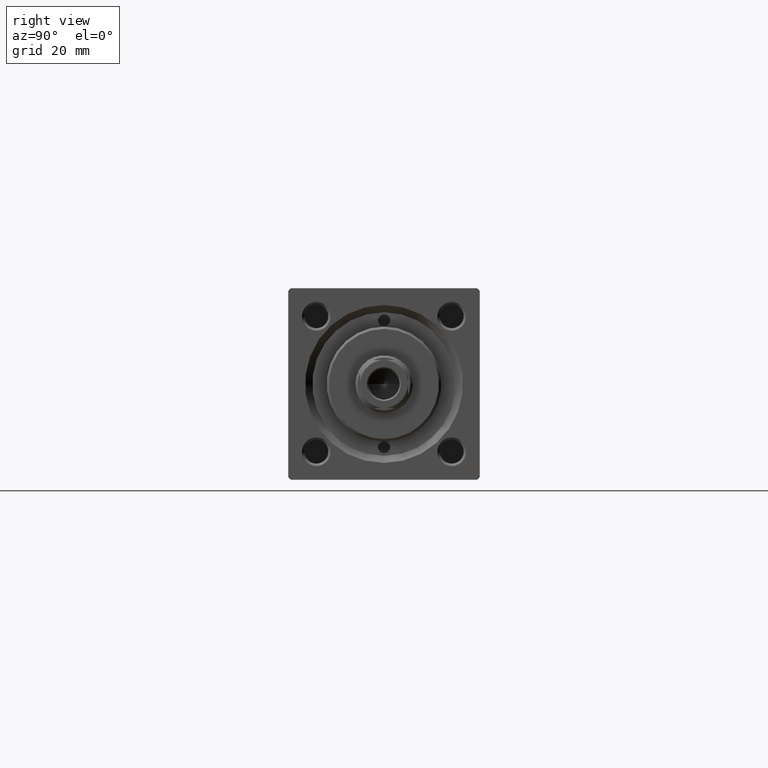
[diagram: clean part render]
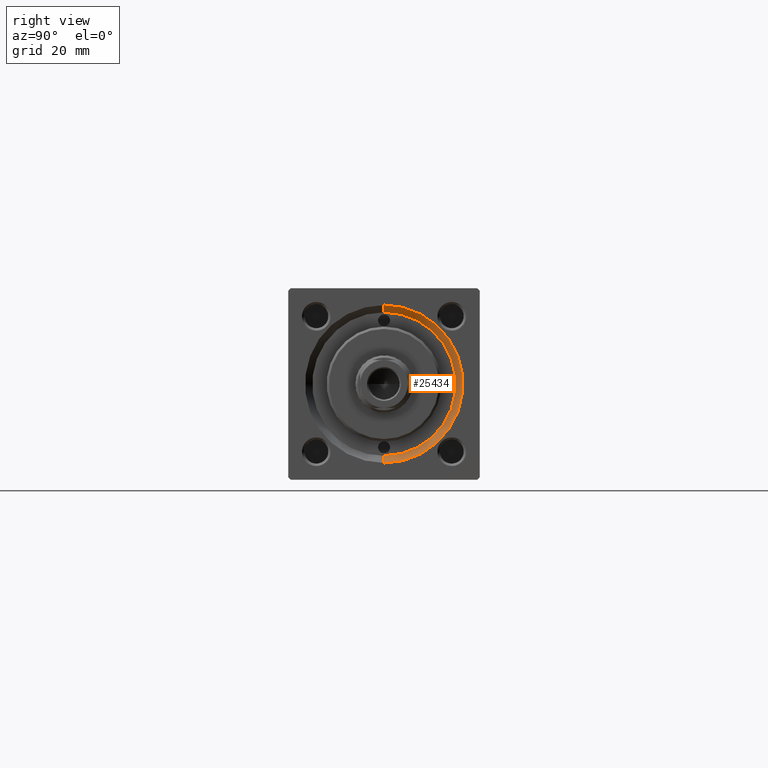
[diagram: same view with one face highlighted and labeled with its STEP entity id]
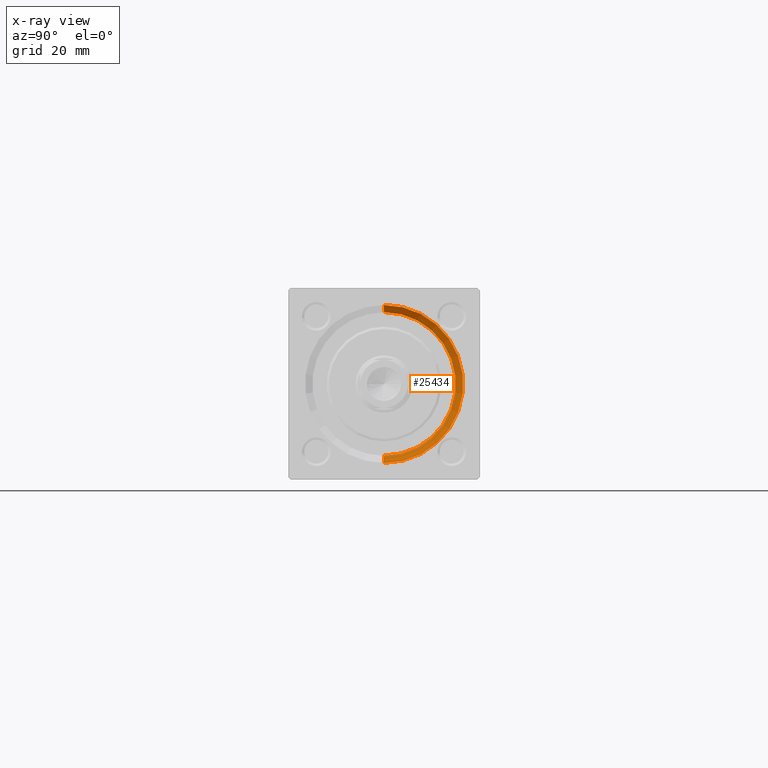
[diagram: x-ray of the same camera — body ghosted, the highlighted face saturated]
A machine part, right view. The second image highlights one B-rep face of the part: STEP entity #25434.
The next image is the same camera in x-ray: the body ghosted, the highlighted face saturated — about 0% of this face is hidden behind the body in this view.
In plain terms, the highlighted conical surface has half-angle 45 deg.
Its self-contained STEP definition (entity closure, byte-faithful):
#1033 = DIRECTION ( 'NONE',  ( 0.7071067811865474617, 0.000000000000000000, -0.7071067811865474617 ) ) ;
#1251 = DIRECTION ( 'NONE',  ( 0.000000000000000000, 0.000000000000000000, 1.000000000000000000 ) ) ;
#1666 = VERTEX_POINT ( 'NONE', #35879 ) ;
#1793 = VECTOR ( 'NONE', #26868, 1000.000000000000114 ) ;
#2026 = LINE ( 'NONE', #32556, #21324 ) ;
#2124 = ORIENTED_EDGE ( 'NONE', *, *, #32568, .F. ) ;
#2422 = CONICAL_SURFACE ( 'NONE', #42992, 15.00000000000000000, 0.7853981633974482790 ) ;
#3227 = CARTESIAN_POINT ( 'NONE',  ( 117.5000000000000000, 1.836970198721029589E-15, 15.00000000000000000 ) ) ;
#4951 = CIRCLE ( 'NONE', #10612, 15.00000000000000000 ) ;
#5742 = AXIS2_PLACEMENT_3D ( 'NONE', #20565, #8372, #1251 ) ;
#5963 = FACE_OUTER_BOUND ( 'NONE', #44896, .T. ) ;
#7938 = VERTEX_POINT ( 'NONE', #21563 ) ;
#8372 = DIRECTION ( 'NONE',  ( -1.000000000000000000, -0.000000000000000000, -0.000000000000000000 ) ) ;
#9277 = CARTESIAN_POINT ( 'NONE',  ( 117.5000000000000000, 0.000000000000000000, 0.000000000000000000 ) ) ;
#9524 = DIRECTION ( 'NONE',  ( 1.000000000000000000, 0.000000000000000000, 0.000000000000000000 ) ) ;
#10612 = AXIS2_PLACEMENT_3D ( 'NONE', #20414, #46618, #23461 ) ;
#10622 = LINE ( 'NONE', #3227, #1793 ) ;
#14664 = ORIENTED_EDGE ( 'NONE', *, *, #35159, .F. ) ;
#20414 = CARTESIAN_POINT ( 'NONE',  ( 117.5000000000000000, 0.000000000000000000, 0.000000000000000000 ) ) ;
#20565 = CARTESIAN_POINT ( 'NONE',  ( 119.0000000000000142, 0.000000000000000000, 0.000000000000000000 ) ) ;
#21324 = VECTOR ( 'NONE', #1033, 1000.000000000000114 ) ;
#21563 = CARTESIAN_POINT ( 'NONE',  ( 119.0000000000000142, 0.000000000000000000, -16.50000000000001421 ) ) ;
#23461 = DIRECTION ( 'NONE',  ( 0.000000000000000000, 0.000000000000000000, 1.000000000000000000 ) ) ;
#25434 = ADVANCED_FACE ( 'NONE', ( #5963 ), #2422, .F. ) ;
#26794 = CARTESIAN_POINT ( 'NONE',  ( 117.5000000000000000, 0.000000000000000000, -15.00000000000000000 ) ) ;
#26868 = DIRECTION ( 'NONE',  ( 0.7071067811865474617, 8.659560562354932858E-17, 0.7071067811865474617 ) ) ;
#27672 = CIRCLE ( 'NONE', #5742, 16.50000000000001421 ) ;
#28431 = EDGE_CURVE ( 'NONE', #41315, #50216, #4951, .T. ) ;
#32556 = CARTESIAN_POINT ( 'NONE',  ( 117.5000000000000000, 0.000000000000000000, -15.00000000000000000 ) ) ;
#32568 = EDGE_CURVE ( 'NONE', #1666, #7938, #27672, .T. ) ;
#35159 = EDGE_CURVE ( 'NONE', #50216, #1666, #10622, .T. ) ;
#35879 = CARTESIAN_POINT ( 'NONE',  ( 119.0000000000000142, 2.020667218593134678E-15, 16.50000000000001421 ) ) ;
#37315 = ORIENTED_EDGE ( 'NONE', *, *, #28431, .F. ) ;
#37341 = ORIENTED_EDGE ( 'NONE', *, *, #44293, .T. ) ;
#41315 = VERTEX_POINT ( 'NONE', #26794 ) ;
#42992 = AXIS2_PLACEMENT_3D ( 'NONE', #9277, #9524, #48176 ) ;
#44293 = EDGE_CURVE ( 'NONE', #41315, #7938, #2026, .T. ) ;
#44896 = EDGE_LOOP ( 'NONE', ( #14664, #37315, #37341, #2124 ) ) ;
#46618 = DIRECTION ( 'NONE',  ( 1.000000000000000000, 0.000000000000000000, 0.000000000000000000 ) ) ;
#47459 = CARTESIAN_POINT ( 'NONE',  ( 117.5000000000000000, 1.836970198721029589E-15, 15.00000000000000000 ) ) ;
#48176 = DIRECTION ( 'NONE',  ( 0.000000000000000000, 0.000000000000000000, -1.000000000000000000 ) ) ;
#50216 = VERTEX_POINT ( 'NONE', #47459 ) ;